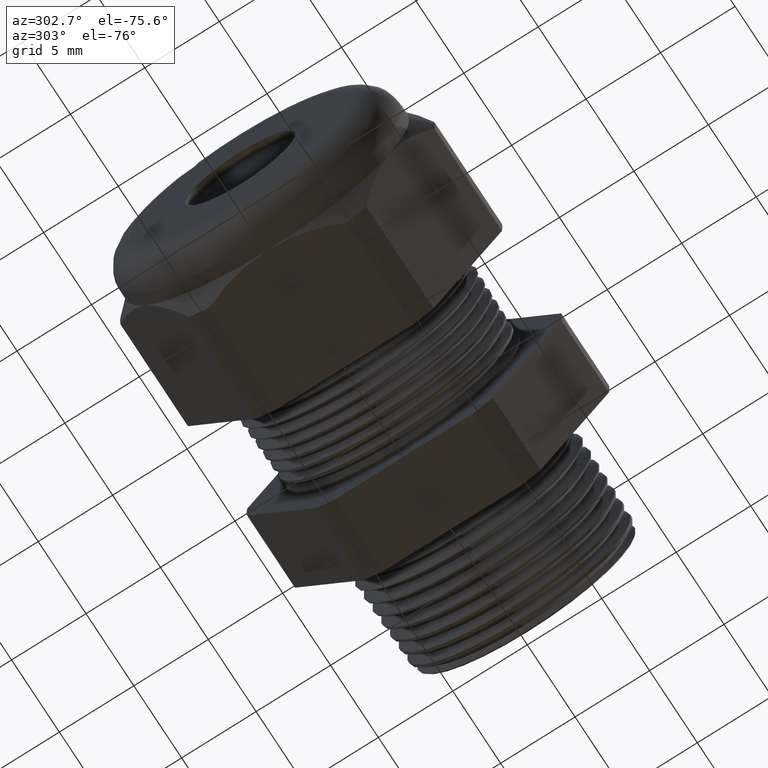
[diagram: clean part render]
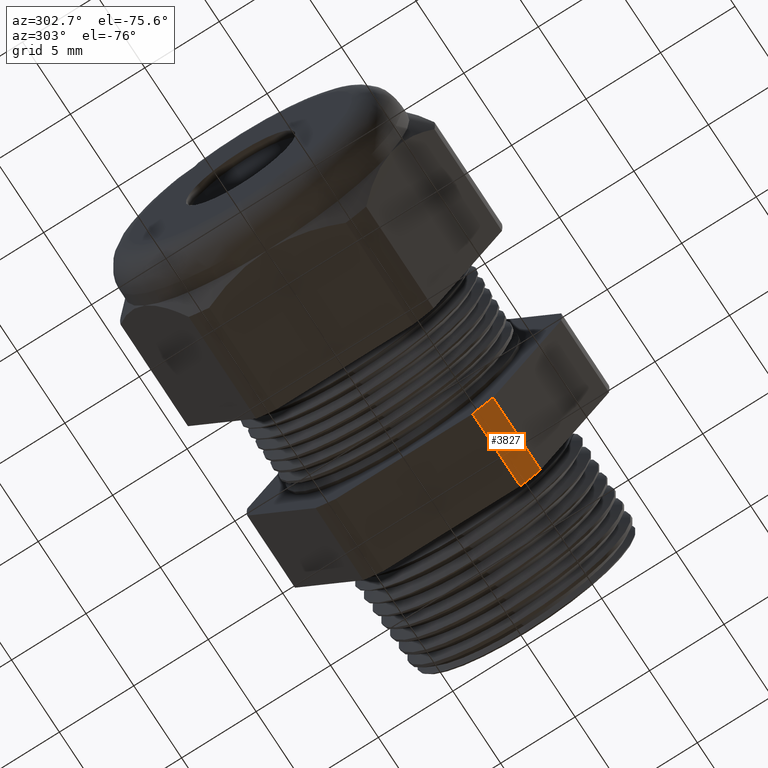
[diagram: same view with one face highlighted and labeled with its STEP entity id]
A machine part, auxiliary view. The second image highlights one B-rep face of the part: STEP entity #3827.
In plain terms, the highlighted cylindrical surface (partial cylindrical patch) has radius 10.5727 mm, axis along (-1, 0, 0).
Its self-contained STEP definition (entity closure, byte-faithful):
#3069 = VECTOR ( 'NONE', #3134, 39.37007874015748100 ) ;
#3070 = CARTESIAN_POINT ( 'NONE',  ( 0.0000000000000000000, -0.2344281053908202100, -0.3439586107409880500 ) ) ;
#3071 = LINE ( 'NONE', #3070, #3069 ) ;
#3088 = CARTESIAN_POINT ( 'NONE',  ( -0.5068503937007874400, -0.2344281053908202100, -0.3439586107409880500 ) ) ;
#3089 = DIRECTION ( 'NONE',  ( 0.0000000000000000000, 0.0000000000000000000, 1.000000000000000000 ) ) ;
#3090 = DIRECTION ( 'NONE',  ( -1.000000000000000000, 0.0000000000000000000, 0.0000000000000000000 ) ) ;
#3091 = CARTESIAN_POINT ( 'NONE',  ( -0.5068503937007874400, 0.0000000000000000000, 0.0000000000000000000 ) ) ;
#3092 = AXIS2_PLACEMENT_3D ( 'NONE', #3091, #3090, #3089 ) ;
#3093 = CIRCLE ( 'NONE', #3092, 0.4162500000000000100 ) ;
#3119 = CARTESIAN_POINT ( 'NONE',  ( -0.5068503937007874400, -0.1806628420566883900, -0.3750000000000001100 ) ) ;
#3120 = DIRECTION ( 'NONE',  ( -1.000000000000000000, 0.0000000000000000000, 0.0000000000000000000 ) ) ;
#3121 = VECTOR ( 'NONE', #3120, 39.37007874015748100 ) ;
#3122 = CARTESIAN_POINT ( 'NONE',  ( 0.0000000000000000000, -0.1806628420566883900, -0.3750000000000001100 ) ) ;
#3123 = LINE ( 'NONE', #3122, #3121 ) ;
#3127 = DIRECTION ( 'NONE',  ( 0.0000000000000000000, 0.0000000000000000000, 1.000000000000000000 ) ) ;
#3128 = DIRECTION ( 'NONE',  ( -1.000000000000000000, 0.0000000000000000000, 0.0000000000000000000 ) ) ;
#3129 = CARTESIAN_POINT ( 'NONE',  ( 0.0000000000000000000, 0.0000000000000000000, 0.0000000000000000000 ) ) ;
#3130 = AXIS2_PLACEMENT_3D ( 'NONE', #3129, #3128, #3127 ) ;
#3131 = CYLINDRICAL_SURFACE ( 'NONE', #3130, 0.4162500000000000100 ) ;
#3133 = FACE_OUTER_BOUND ( 'NONE', #3825, .T. ) ;
#3134 = DIRECTION ( 'NONE',  ( -1.000000000000000000, 0.0000000000000000000, 0.0000000000000000000 ) ) ;
#3174 = CARTESIAN_POINT ( 'NONE',  ( -0.3100000000000000000, -0.2344281053908202100, -0.3439586107409880500 ) ) ;
#3427 = DIRECTION ( 'NONE',  ( 0.0000000000000000000, 0.0000000000000000000, -1.000000000000000000 ) ) ;
#3428 = DIRECTION ( 'NONE',  ( 1.000000000000000000, 0.0000000000000000000, 0.0000000000000000000 ) ) ;
#3429 = CARTESIAN_POINT ( 'NONE',  ( -0.3100000000000000000, 0.0000000000000000000, 0.0000000000000000000 ) ) ;
#3430 = AXIS2_PLACEMENT_3D ( 'NONE', #3429, #3428, #3427 ) ;
#3431 = CIRCLE ( 'NONE', #3430, 0.4162500000000000100 ) ;
#3432 = CARTESIAN_POINT ( 'NONE',  ( -0.3100000000000000000, -0.1806628420566883900, -0.3750000000000001100 ) ) ;
#3813 = EDGE_CURVE ( 'NONE', #3832, #3815, #3093, .T. ) ;
#3814 = ORIENTED_EDGE ( 'NONE', *, *, #3813, .F. ) ;
#3815 = VERTEX_POINT ( 'NONE', #3088 ) ;
#3822 = ORIENTED_EDGE ( 'NONE', *, *, #3823, .T. ) ;
#3823 = EDGE_CURVE ( 'NONE', #3873, #3815, #3071, .T. ) ;
#3824 = ORIENTED_EDGE ( 'NONE', *, *, #3984, .F. ) ;
#3825 = EDGE_LOOP ( 'NONE', ( #3826, #3824, #3822, #3814 ) ) ;
#3826 = ORIENTED_EDGE ( 'NONE', *, *, #3830, .F. ) ;
#3827 = ADVANCED_FACE ( 'NONE', ( #3133 ), #3131, .T. ) ;
#3830 = EDGE_CURVE ( 'NONE', #3983, #3832, #3123, .T. ) ;
#3832 = VERTEX_POINT ( 'NONE', #3119 ) ;
#3873 = VERTEX_POINT ( 'NONE', #3174 ) ;
#3983 = VERTEX_POINT ( 'NONE', #3432 ) ;
#3984 = EDGE_CURVE ( 'NONE', #3873, #3983, #3431, .T. ) ;